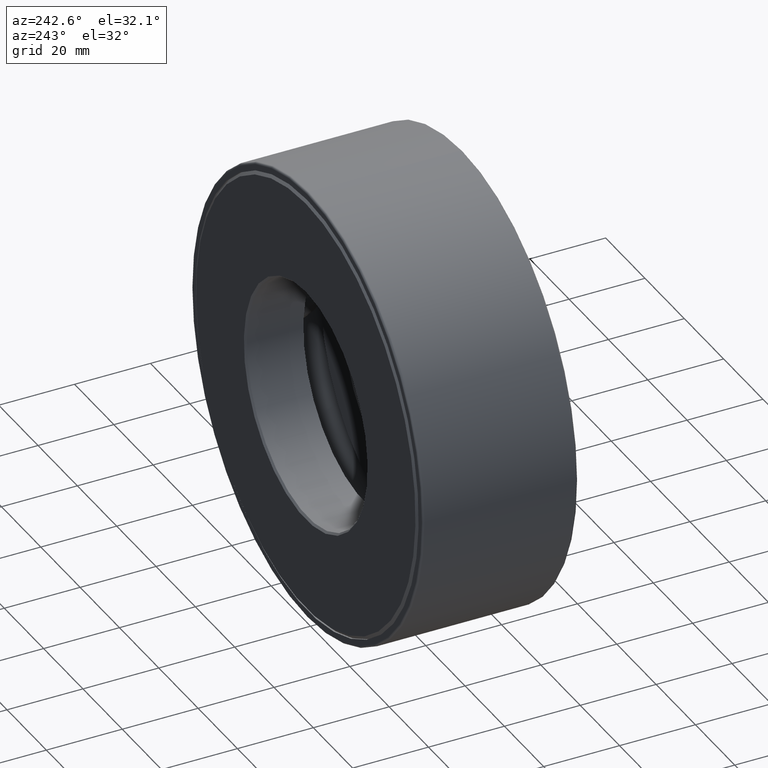
[diagram: clean part render]
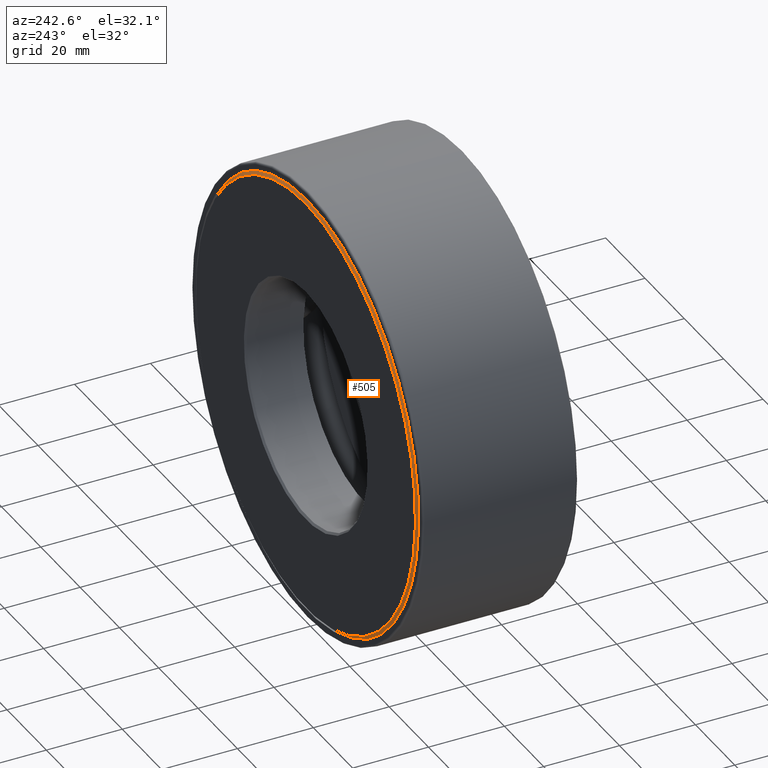
[diagram: same view with one face highlighted and labeled with its STEP entity id]
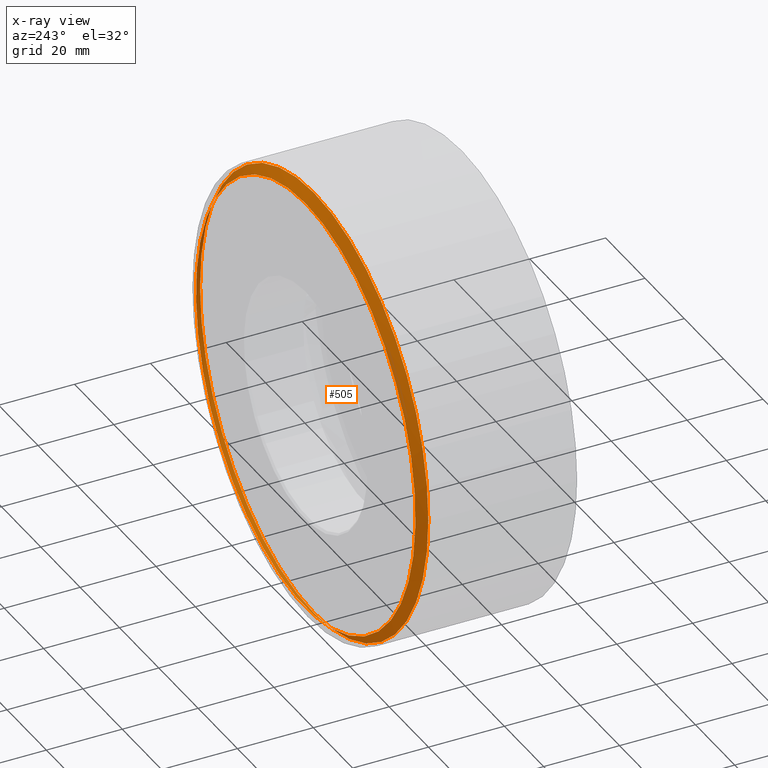
[diagram: x-ray of the same camera — body ghosted, the highlighted face saturated]
A machine part, auxiliary view. The second image highlights one B-rep face of the part: STEP entity #505.
The next image is the same camera in x-ray: the body ghosted, the highlighted face saturated — about 0% of this face is hidden behind the body in this view.
In plain terms, the highlighted conical surface has half-angle 45 deg.
Its self-contained STEP definition (entity closure, byte-faithful):
#13 = VERTEX_POINT ( 'NONE', #337 ) ;
#34 = DIRECTION ( 'NONE',  ( 0.0000000000000000000, -1.000000000000000000, 0.0000000000000000000 ) ) ;
#44 = CARTESIAN_POINT ( 'NONE',  ( 0.0000000000000000000, 1.536999999999999500, 0.0000000000000000000 ) ) ;
#79 = AXIS2_PLACEMENT_3D ( 'NONE', #402, #34, #133 ) ;
#82 = CARTESIAN_POINT ( 'NONE',  ( 0.0000000000000000000, 1.625000000000000200, 0.0000000000000000000 ) ) ;
#83 = VERTEX_POINT ( 'NONE', #423 ) ;
#110 = CONICAL_SURFACE ( 'NONE', #79, 2.197499999999999300, 0.7853981633974466100 ) ;
#112 = EDGE_LOOP ( 'NONE', ( #496 ) ) ;
#130 = FACE_OUTER_BOUND ( 'NONE', #112, .T. ) ;
#133 = DIRECTION ( 'NONE',  ( 0.0000000000000000000, 0.0000000000000000000, -1.000000000000000000 ) ) ;
#136 = DIRECTION ( 'NONE',  ( -0.0000000000000000000, 1.000000000000000000, -0.0000000000000000000 ) ) ;
#137 = CIRCLE ( 'NONE', #225, 2.285499999999999900 ) ;
#208 = EDGE_LOOP ( 'NONE', ( #285 ) ) ;
#225 = AXIS2_PLACEMENT_3D ( 'NONE', #44, #136, #279 ) ;
#267 = AXIS2_PLACEMENT_3D ( 'NONE', #82, #357, #358 ) ;
#279 = DIRECTION ( 'NONE',  ( 0.0000000000000000000, 0.0000000000000000000, 1.000000000000000000 ) ) ;
#285 = ORIENTED_EDGE ( 'NONE', *, *, #477, .F. ) ;
#337 = CARTESIAN_POINT ( 'NONE',  ( 0.0000000000000000000, 1.536999999999999500, 2.285499999999999900 ) ) ;
#357 = DIRECTION ( 'NONE',  ( -0.0000000000000000000, 1.000000000000000000, -0.0000000000000000000 ) ) ;
#358 = DIRECTION ( 'NONE',  ( 0.0000000000000000000, 0.0000000000000000000, 1.000000000000000000 ) ) ;
#402 = CARTESIAN_POINT ( 'NONE',  ( 0.0000000000000000000, 1.625000000000000200, 0.0000000000000000000 ) ) ;
#423 = CARTESIAN_POINT ( 'NONE',  ( 0.0000000000000000000, 1.625000000000000200, 2.197499999999999300 ) ) ;
#455 = CIRCLE ( 'NONE', #267, 2.197499999999999300 ) ;
#477 = EDGE_CURVE ( 'NONE', #83, #83, #455, .T. ) ;
#496 = ORIENTED_EDGE ( 'NONE', *, *, #597, .T. ) ;
#505 = ADVANCED_FACE ( 'NONE', ( #130, #533 ), #110, .T. ) ;
#533 = FACE_BOUND ( 'NONE', #208, .T. ) ;
#597 = EDGE_CURVE ( 'NONE', #13, #13, #137, .T. ) ;